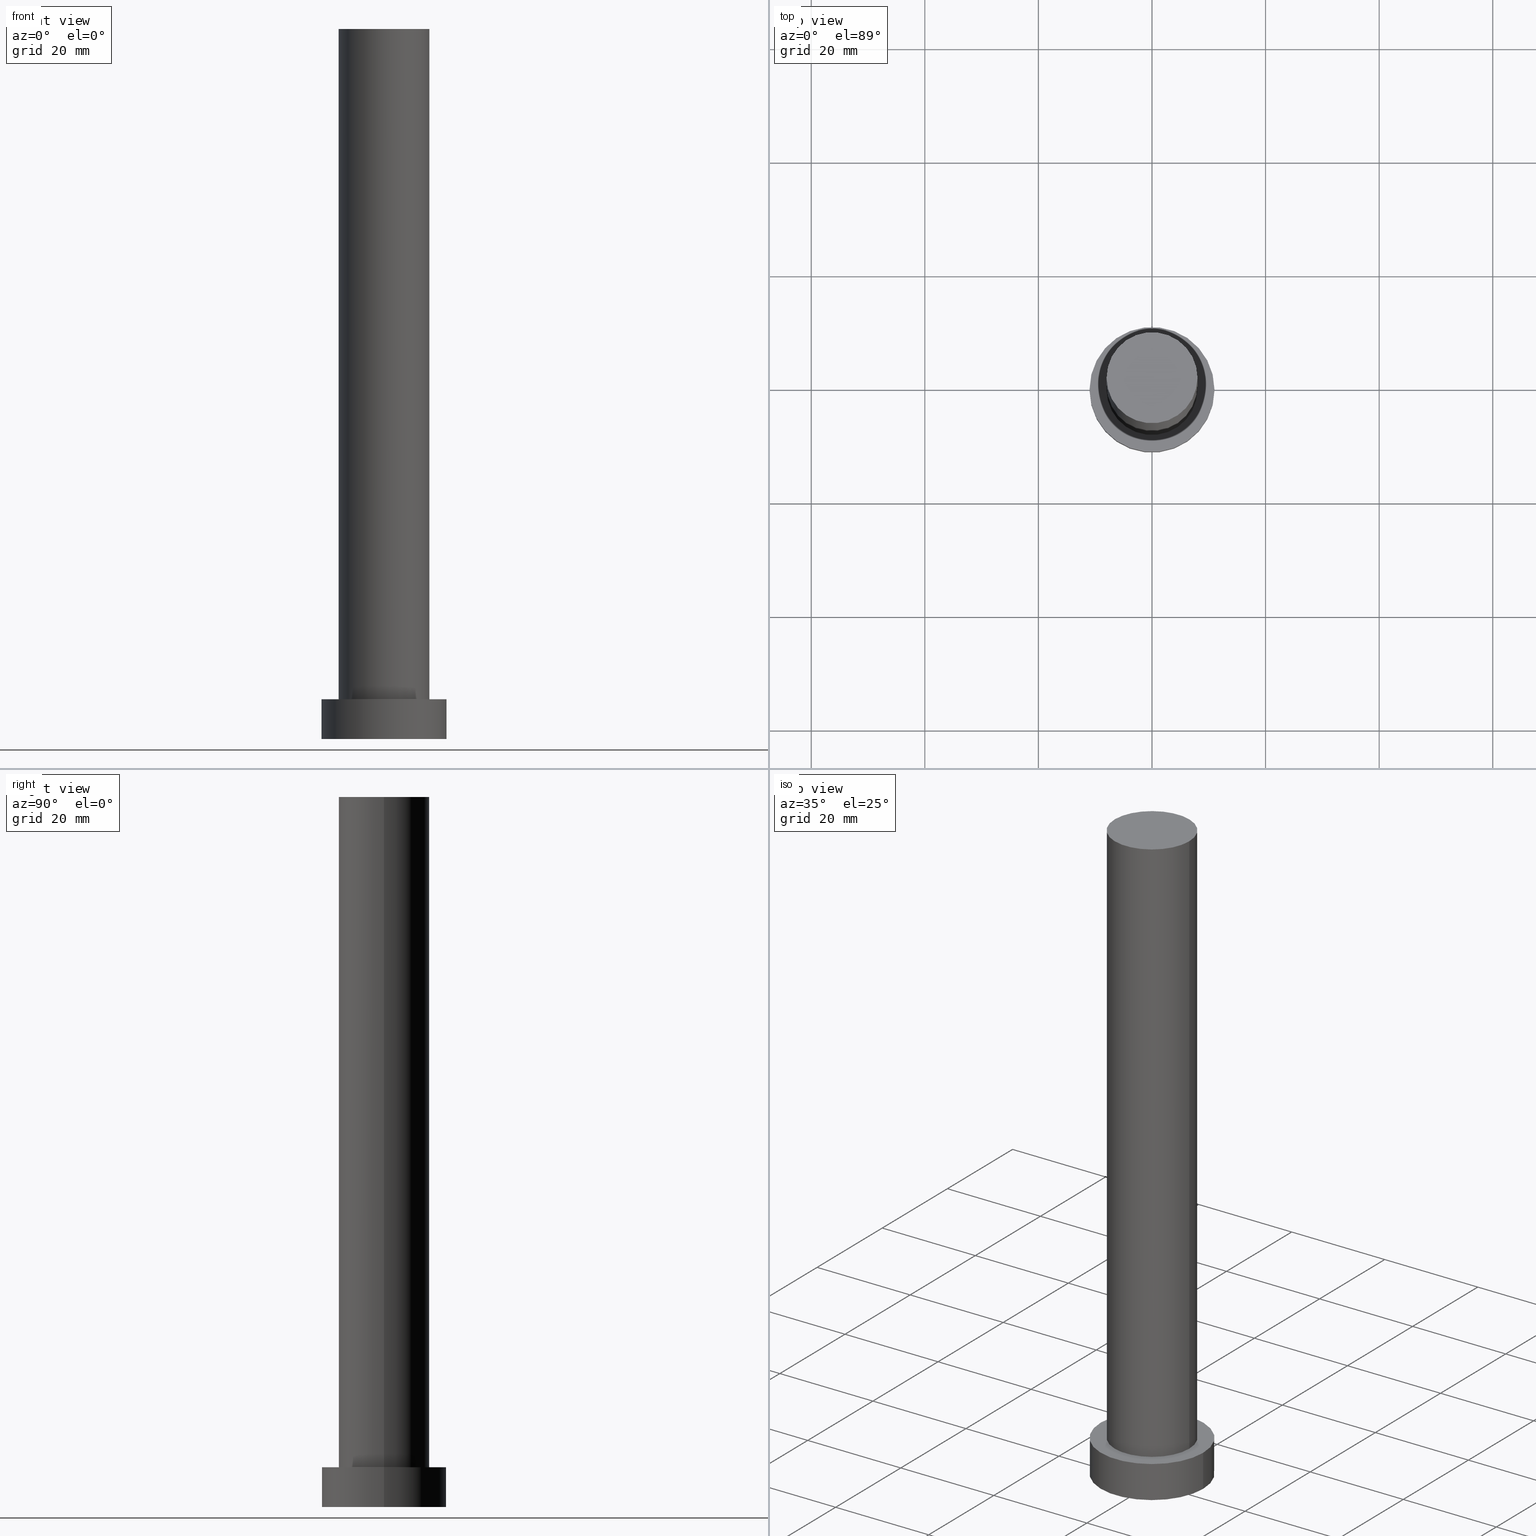
[diagram: canonical four-view strip — front | top / right | iso, engineering-drawing reading convention]
A machine part, canonical four-view strip (front | top / right | iso — engineering-drawing reading convention). The complete STEP part file that produces these views, byte-faithful:
ISO-10303-21;
HEADER;
FILE_DESCRIPTION (( 'STEP AP203' ),
    '1' );
FILE_NAME ('a4a7.STEP',
    '2023-02-13T09:15:44',
    ( '' ),
    ( '' ),
    'SwSTEP 2.0',
    'SolidWorks 2019',
    '' );
FILE_SCHEMA (( 'CONFIG_CONTROL_DESIGN' ));
ENDSEC;

DATA;
#1 = COORDINATED_UNIVERSAL_TIME_OFFSET ( 1, 0, .AHEAD. ) ;
#2 = ADVANCED_FACE ( 'NONE', ( #35 ), #195, .T. ) ;
#3 = CARTESIAN_POINT ( 'NONE',  ( 0.000000000000000000, 0.000000000000000000, 0.000000000000000000 ) ) ;
#4 = CARTESIAN_POINT ( 'NONE',  ( 8.000000000000000000, 9.797174393178825657E-16, 125.0000000000000000 ) ) ;
#5 = CC_DESIGN_APPROVAL ( #60, ( #173 ) ) ;
#6 = CARTESIAN_POINT ( 'NONE',  ( -8.000000000000000000, 0.000000000000000000, 125.0000000000000000 ) ) ;
#7 = ORIENTED_EDGE ( 'NONE', *, *, #156, .F. ) ;
#8 = CALENDAR_DATE ( 2023, 13, 2 ) ;
#9 = ORIENTED_EDGE ( 'NONE', *, *, #112, .F. ) ;
#10 = DIRECTION ( 'NONE',  ( -1.000000000000000000, 0.000000000000000000, 0.000000000000000000 ) ) ;
#11 = DIRECTION ( 'NONE',  ( -1.000000000000000000, 0.000000000000000000, 0.000000000000000000 ) ) ;
#12 = APPROVAL ( #123, 'NEUR�EN�' ) ;
#13 = CARTESIAN_POINT ( 'NONE',  ( 0.000000000000000000, 0.000000000000000000, 7.000000000000000000 ) ) ;
#14 = AXIS2_PLACEMENT_3D ( 'NONE', #3, #21, #129 ) ;
#15 = ORIENTED_EDGE ( 'NONE', *, *, #97, .F. ) ;
#16 = APPROVAL_DATE_TIME ( #92, #60 ) ;
#17 = CYLINDRICAL_SURFACE ( 'NONE', #46, 8.000000000000000000 ) ;
#18 = PERSON_AND_ORGANIZATION_ROLE ( 'creator' ) ;
#19 = ADVANCED_FACE ( 'NONE', ( #52 ), #17, .T. ) ;
#20 = DIRECTION ( 'NONE',  ( 1.000000000000000000, 0.000000000000000000, -0.000000000000000000 ) ) ;
#21 = DIRECTION ( 'NONE',  ( 0.000000000000000000, 0.000000000000000000, 1.000000000000000000 ) ) ;
#22 = EDGE_CURVE ( 'NONE', #158, #239, #190, .T. ) ;
#23 = DIRECTION ( 'NONE',  ( 1.000000000000000000, 0.000000000000000000, 0.000000000000000000 ) ) ;
#24 = VECTOR ( 'NONE', #39, 1000.000000000000000 ) ;
#25 = APPROVAL_PERSON_ORGANIZATION ( #120, #67, #203 ) ;
#26 = PERSON_AND_ORGANIZATION ( #69, #41 ) ;
#27 = AXIS2_PLACEMENT_3D ( 'NONE', #197, #198, #11 ) ;
#28 = DATE_AND_TIME ( #79, #248 ) ;
#29 = CLOSED_SHELL ( 'NONE', ( #54, #2, #183, #253, #45, #19, #200 ) ) ;
#30 = AXIS2_PLACEMENT_3D ( 'NONE', #134, #84, #20 ) ;
#31 = FACE_OUTER_BOUND ( 'NONE', #48, .T. ) ;
#32 = DATE_AND_TIME ( #38, #240 ) ;
#33 = DIRECTION ( 'NONE',  ( 1.000000000000000000, 0.000000000000000000, -0.000000000000000000 ) ) ;
#34 = COORDINATED_UNIVERSAL_TIME_OFFSET ( 1, 0, .AHEAD. ) ;
#35 = FACE_OUTER_BOUND ( 'NONE', #71, .T. ) ;
#36 = CARTESIAN_POINT ( 'NONE',  ( 0.000000000000000000, 0.000000000000000000, 7.000000000000000000 ) ) ;
#37 =( GEOMETRIC_REPRESENTATION_CONTEXT ( 3 ) GLOBAL_UNCERTAINTY_ASSIGNED_CONTEXT ( ( #194 ) ) GLOBAL_UNIT_ASSIGNED_CONTEXT ( ( #207, #242, #110 ) ) REPRESENTATION_CONTEXT ( 'NONE', 'WORKASPACE' ) );
#38 = CALENDAR_DATE ( 2023, 13, 2 ) ;
#39 = DIRECTION ( 'NONE',  ( -0.000000000000000000, -0.000000000000000000, -1.000000000000000000 ) ) ;
#40 = CARTESIAN_POINT ( 'NONE',  ( -11.00000000000000000, 0.000000000000000000, 7.000000000000000000 ) ) ;
#41 = ORGANIZATION ( 'NEUR�EN�', 'NEUR�EN�', '' ) ;
#42 = CARTESIAN_POINT ( 'NONE',  ( 8.000000000000000000, 9.797174393178825657E-16, 7.000000000000000000 ) ) ;
#43 = CARTESIAN_POINT ( 'NONE',  ( 0.000000000000000000, 0.000000000000000000, 0.000000000000000000 ) ) ;
#44 = APPROVAL_STATUS ( 'not_yet_approved' ) ;
#45 = ADVANCED_FACE ( 'NONE', ( #230 ), #249, .F. ) ;
#46 = AXIS2_PLACEMENT_3D ( 'NONE', #252, #139, #148 ) ;
#47 = AXIS2_PLACEMENT_3D ( 'NONE', #133, #235, #113 ) ;
#48 = EDGE_LOOP ( 'NONE', ( #167, #243, #128, #119 ) ) ;
#49 = ORIENTED_EDGE ( 'NONE', *, *, #22, .T. ) ;
#50 = CC_DESIGN_PERSON_AND_ORGANIZATION_ASSIGNMENT ( #105, #143, ( #155 ) ) ;
#51 = CIRCLE ( 'NONE', #66, 8.000000000000000000 ) ;
#52 = FACE_OUTER_BOUND ( 'NONE', #211, .T. ) ;
#53 = VERTEX_POINT ( 'NONE', #124 ) ;
#54 = ADVANCED_FACE ( 'NONE', ( #31 ), #122, .T. ) ;
#55 = LINE ( 'NONE', #144, #154 ) ;
#56 = ORIENTED_EDGE ( 'NONE', *, *, #187, .F. ) ;
#57 = APPROVAL_STATUS ( 'not_yet_approved' ) ;
#58 = CARTESIAN_POINT ( 'NONE',  ( 0.000000000000000000, 0.000000000000000000, 125.0000000000000000 ) ) ;
#59 = DIRECTION ( 'NONE',  ( 0.000000000000000000, 0.000000000000000000, 1.000000000000000000 ) ) ;
#60 = APPROVAL ( #44, 'NEUR�EN�' ) ;
#61 = CARTESIAN_POINT ( 'NONE',  ( 0.000000000000000000, 0.000000000000000000, 125.0000000000000000 ) ) ;
#62 = AXIS2_PLACEMENT_3D ( 'NONE', #13, #180, #199 ) ;
#63 = FACE_BOUND ( 'NONE', #142, .T. ) ;
#64 = PERSON_AND_ORGANIZATION_ROLE ( 'design_owner' ) ;
#65 = VECTOR ( 'NONE', #99, 1000.000000000000000 ) ;
#66 = AXIS2_PLACEMENT_3D ( 'NONE', #151, #83, #205 ) ;
#67 = APPROVAL ( #57, 'NEUR�EN�' ) ;
#68 = ORIENTED_EDGE ( 'NONE', *, *, #206, .F. ) ;
#69 = PERSON ( 'NEUR�EN�', 'NEUR�EN�', 'NEUR�EN�', ('NEUR�EN�'), ('NEUR�EN�'), ('NEUR�EN�') ) ;
#70 = CIRCLE ( 'NONE', #196, 8.000000000000000000 ) ;
#71 = EDGE_LOOP ( 'NONE', ( #232, #95, #104, #91 ) ) ;
#72 = APPLICATION_CONTEXT ( 'configuration controlled 3d designs of mechanical parts and assemblies' ) ;
#73 = ORIENTED_EDGE ( 'NONE', *, *, #77, .F. ) ;
#74 = SECURITY_CLASSIFICATION_LEVEL ( 'unclassified' ) ;
#75 = AXIS2_PLACEMENT_3D ( 'NONE', #125, #220, #98 ) ;
#76 = CARTESIAN_POINT ( 'NONE',  ( 8.000000000000000000, 9.797174393178825657E-16, 125.0000000000000000 ) ) ;
#77 = EDGE_CURVE ( 'NONE', #164, #239, #233, .T. ) ;
#78 = DIRECTION ( 'NONE',  ( -0.000000000000000000, -0.000000000000000000, -1.000000000000000000 ) ) ;
#79 = CALENDAR_DATE ( 2023, 13, 2 ) ;
#80 = ORIENTED_EDGE ( 'NONE', *, *, #156, .T. ) ;
#81 = COORDINATED_UNIVERSAL_TIME_OFFSET ( 1, 0, .AHEAD. ) ;
#82 = LINE ( 'NONE', #6, #24 ) ;
#83 = DIRECTION ( 'NONE',  ( 0.000000000000000000, 0.000000000000000000, 1.000000000000000000 ) ) ;
#84 = DIRECTION ( 'NONE',  ( 0.000000000000000000, 0.000000000000000000, 1.000000000000000000 ) ) ;
#85 = ORIENTED_EDGE ( 'NONE', *, *, #187, .T. ) ;
#86 = FACE_OUTER_BOUND ( 'NONE', #229, .T. ) ;
#87 = AXIS2_PLACEMENT_3D ( 'NONE', #160, #202, #10 ) ;
#88 = CIRCLE ( 'NONE', #94, 11.00000000000000000 ) ;
#89 = CC_DESIGN_PERSON_AND_ORGANIZATION_ASSIGNMENT ( #179, #163, ( #173 ) ) ;
#90 = DIRECTION ( 'NONE',  ( -0.000000000000000000, -0.000000000000000000, -1.000000000000000000 ) ) ;
#91 = ORIENTED_EDGE ( 'NONE', *, *, #107, .F. ) ;
#92 = DATE_AND_TIME ( #8, #127 ) ;
#93 = ORIENTED_EDGE ( 'NONE', *, *, #118, .T. ) ;
#94 = AXIS2_PLACEMENT_3D ( 'NONE', #170, #59, #223 ) ;
#95 = ORIENTED_EDGE ( 'NONE', *, *, #112, .T. ) ;
#96 = SECURITY_CLASSIFICATION ( '', '', #74 ) ;
#97 = EDGE_CURVE ( 'NONE', #239, #158, #126, .T. ) ;
#98 = DIRECTION ( 'NONE',  ( 1.000000000000000000, 0.000000000000000000, 0.000000000000000000 ) ) ;
#99 = DIRECTION ( 'NONE',  ( -0.000000000000000000, -0.000000000000000000, -1.000000000000000000 ) ) ;
#100 = DIRECTION ( 'NONE',  ( 0.000000000000000000, 0.000000000000000000, 1.000000000000000000 ) ) ;
#101 = APPROVAL_DATE_TIME ( #217, #12 ) ;
#102 = LINE ( 'NONE', #182, #247 ) ;
#103 = PERSON_AND_ORGANIZATION_ROLE ( 'classification_officer' ) ;
#104 = ORIENTED_EDGE ( 'NONE', *, *, #224, .T. ) ;
#105 = PERSON_AND_ORGANIZATION ( #69, #41 ) ;
#106 = CARTESIAN_POINT ( 'NONE',  ( 11.00000000000000000, 1.347111479062088405E-15, 0.000000000000000000 ) ) ;
#107 = EDGE_CURVE ( 'NONE', #246, #162, #102, .T. ) ;
#108 = DIRECTION ( 'NONE',  ( 0.000000000000000000, 0.000000000000000000, 1.000000000000000000 ) ) ;
#109 = AXIS2_PLACEMENT_3D ( 'NONE', #169, #90, #153 ) ;
#110 =( NAMED_UNIT ( * ) SI_UNIT ( $, .STERADIAN. ) SOLID_ANGLE_UNIT ( ) );
#111 = APPLICATION_PROTOCOL_DEFINITION ( 'international standard', 'config_control_design', 1994, #188 ) ;
#112 = EDGE_CURVE ( 'NONE', #214, #250, #55, .T. ) ;
#113 = DIRECTION ( 'NONE',  ( 1.000000000000000000, 0.000000000000000000, 0.000000000000000000 ) ) ;
#114 = AXIS2_PLACEMENT_3D ( 'NONE', #138, #100, #33 ) ;
#115 = AXIS2_PLACEMENT_3D ( 'NONE', #43, #208, #23 ) ;
#116 = MECHANICAL_CONTEXT ( 'NONE', #188, 'mechanical' ) ;
#117 = PRODUCT_DEFINITION_SHAPE ( 'NONE', 'NONE',  #173 ) ;
#118 = EDGE_CURVE ( 'NONE', #214, #246, #186, .T. ) ;
#119 = ORIENTED_EDGE ( 'NONE', *, *, #166, .F. ) ;
#120 = PERSON_AND_ORGANIZATION ( #69, #41 ) ;
#121 = CC_DESIGN_SECURITY_CLASSIFICATION ( #96, ( #155 ) ) ;
#122 = CYLINDRICAL_SURFACE ( 'NONE', #27, 8.000000000000000000 ) ;
#123 = APPROVAL_STATUS ( 'not_yet_approved' ) ;
#124 = CARTESIAN_POINT ( 'NONE',  ( -8.000000000000000000, 0.000000000000000000, 125.0000000000000000 ) ) ;
#125 = CARTESIAN_POINT ( 'NONE',  ( 0.000000000000000000, 0.000000000000000000, 7.000000000000000000 ) ) ;
#126 = CIRCLE ( 'NONE', #62, 8.000000000000000000 ) ;
#127 = LOCAL_TIME ( 10, 15, 44.00000000000000000, #209 ) ;
#128 = ORIENTED_EDGE ( 'NONE', *, *, #97, .T. ) ;
#129 = DIRECTION ( 'NONE',  ( 1.000000000000000000, 0.000000000000000000, 0.000000000000000000 ) ) ;
#130 = CC_DESIGN_PERSON_AND_ORGANIZATION_ASSIGNMENT ( #140, #18, ( #155 ) ) ;
#131 = FACE_OUTER_BOUND ( 'NONE', #234, .T. ) ;
#132 = CC_DESIGN_APPROVAL ( #12, ( #155 ) ) ;
#133 = CARTESIAN_POINT ( 'NONE',  ( 0.000000000000000000, 0.000000000000000000, 7.000000000000000000 ) ) ;
#134 = CARTESIAN_POINT ( 'NONE',  ( 0.000000000000000000, 0.000000000000000000, 7.000000000000000000 ) ) ;
#135 = CYLINDRICAL_SURFACE ( 'NONE', #109, 11.00000000000000000 ) ;
#136 = APPROVAL_ROLE ( '' ) ;
#137 = LOCAL_TIME ( 10, 15, 44.00000000000000000, #81 ) ;
#138 = CARTESIAN_POINT ( 'NONE',  ( 0.000000000000000000, 0.000000000000000000, 0.000000000000000000 ) ) ;
#139 = DIRECTION ( 'NONE',  ( -0.000000000000000000, -0.000000000000000000, -1.000000000000000000 ) ) ;
#140 = PERSON_AND_ORGANIZATION ( #69, #41 ) ;
#141 = CC_DESIGN_PERSON_AND_ORGANIZATION_ASSIGNMENT ( #26, #64, ( #244 ) ) ;
#142 = EDGE_LOOP ( 'NONE', ( #216, #15 ) ) ;
#143 = PERSON_AND_ORGANIZATION_ROLE ( 'design_supplier' ) ;
#144 = CARTESIAN_POINT ( 'NONE',  ( 11.00000000000000000, 1.347111479062088405E-15, 7.000000000000000000 ) ) ;
#145 = APPROVAL_ROLE ( '' ) ;
#146 = AXIS2_PLACEMENT_3D ( 'NONE', #36, #152, #221 ) ;
#147 = LOCAL_TIME ( 10, 15, 44.00000000000000000, #34 ) ;
#148 = DIRECTION ( 'NONE',  ( -1.000000000000000000, 0.000000000000000000, 0.000000000000000000 ) ) ;
#149 = CC_DESIGN_DATE_AND_TIME_ASSIGNMENT ( #28, #165, ( #173 ) ) ;
#150 = FACE_OUTER_BOUND ( 'NONE', #175, .T. ) ;
#151 = CARTESIAN_POINT ( 'NONE',  ( 0.000000000000000000, 0.000000000000000000, 125.0000000000000000 ) ) ;
#152 = DIRECTION ( 'NONE',  ( 0.000000000000000000, 0.000000000000000000, 1.000000000000000000 ) ) ;
#153 = DIRECTION ( 'NONE',  ( -1.000000000000000000, 0.000000000000000000, 0.000000000000000000 ) ) ;
#154 = VECTOR ( 'NONE', #218, 1000.000000000000000 ) ;
#155 = PRODUCT_DEFINITION_FORMATION_WITH_SPECIFIED_SOURCE ( 'LIBOVOLN�', '', #244, .NOT_KNOWN. ) ;
#156 = EDGE_CURVE ( 'NONE', #162, #250, #227, .T. ) ;
#157 = ORIENTED_EDGE ( 'NONE', *, *, #166, .T. ) ;
#158 = VERTEX_POINT ( 'NONE', #238 ) ;
#159 = COORDINATED_UNIVERSAL_TIME_OFFSET ( 1, 0, .AHEAD. ) ;
#160 = CARTESIAN_POINT ( 'NONE',  ( 0.000000000000000000, 0.000000000000000000, 7.000000000000000000 ) ) ;
#161 = CALENDAR_DATE ( 2023, 13, 2 ) ;
#162 = VERTEX_POINT ( 'NONE', #189 ) ;
#163 = PERSON_AND_ORGANIZATION_ROLE ( 'creator' ) ;
#164 = VERTEX_POINT ( 'NONE', #4 ) ;
#165 = DATE_TIME_ROLE ( 'creation_date' ) ;
#166 = EDGE_CURVE ( 'NONE', #53, #158, #82, .T. ) ;
#167 = ORIENTED_EDGE ( 'NONE', *, *, #213, .F. ) ;
#168 = PERSON_AND_ORGANIZATION ( #69, #41 ) ;
#169 = CARTESIAN_POINT ( 'NONE',  ( 0.000000000000000000, 0.000000000000000000, 7.000000000000000000 ) ) ;
#170 = CARTESIAN_POINT ( 'NONE',  ( 0.000000000000000000, 0.000000000000000000, 0.000000000000000000 ) ) ;
#171 = CIRCLE ( 'NONE', #47, 11.00000000000000000 ) ;
#172 = PLANE ( 'NONE',  #30 ) ;
#173 = PRODUCT_DEFINITION ( 'NEZN�M�', '', #155, #226 ) ;
#174 = APPROVAL_PERSON_ORGANIZATION ( #225, #60, #136 ) ;
#175 = EDGE_LOOP ( 'NONE', ( #85, #93 ) ) ;
#176 = CC_DESIGN_APPROVAL ( #67, ( #96 ) ) ;
#177 = CC_DESIGN_DATE_AND_TIME_ASSIGNMENT ( #212, #201, ( #96 ) ) ;
#178 = ORIENTED_EDGE ( 'NONE', *, *, #224, .F. ) ;
#179 = PERSON_AND_ORGANIZATION ( #69, #41 ) ;
#180 = DIRECTION ( 'NONE',  ( 0.000000000000000000, 0.000000000000000000, 1.000000000000000000 ) ) ;
#181 = SHAPE_DEFINITION_REPRESENTATION ( #117, #236 ) ;
#182 = CARTESIAN_POINT ( 'NONE',  ( -11.00000000000000000, 0.000000000000000000, 7.000000000000000000 ) ) ;
#183 = ADVANCED_FACE ( 'NONE', ( #131 ), #135, .T. ) ;
#184 = ORIENTED_EDGE ( 'NONE', *, *, #206, .T. ) ;
#185 = APPROVAL_DATE_TIME ( #32, #67 ) ;
#186 = CIRCLE ( 'NONE', #146, 11.00000000000000000 ) ;
#187 = EDGE_CURVE ( 'NONE', #246, #214, #171, .T. ) ;
#188 = APPLICATION_CONTEXT ( 'configuration controlled 3d designs of mechanical parts and assemblies' ) ;
#189 = CARTESIAN_POINT ( 'NONE',  ( -11.00000000000000000, 0.000000000000000000, 0.000000000000000000 ) ) ;
#190 = CIRCLE ( 'NONE', #75, 8.000000000000000000 ) ;
#191 = DIRECTION ( 'NONE',  ( 1.000000000000000000, 0.000000000000000000, -0.000000000000000000 ) ) ;
#192 = ORIENTED_EDGE ( 'NONE', *, *, #213, .T. ) ;
#193 = APPLICATION_PROTOCOL_DEFINITION ( 'international standard', 'config_control_design', 1994, #72 ) ;
#194 = UNCERTAINTY_MEASURE_WITH_UNIT (LENGTH_MEASURE( 1.000000000000000082E-05 ), #207, 'distance_accuracy_value', 'NONE');
#195 = CYLINDRICAL_SURFACE ( 'NONE', #87, 11.00000000000000000 ) ;
#196 = AXIS2_PLACEMENT_3D ( 'NONE', #58, #108, #204 ) ;
#197 = CARTESIAN_POINT ( 'NONE',  ( 0.000000000000000000, 0.000000000000000000, 125.0000000000000000 ) ) ;
#198 = DIRECTION ( 'NONE',  ( -0.000000000000000000, -0.000000000000000000, -1.000000000000000000 ) ) ;
#199 = DIRECTION ( 'NONE',  ( 1.000000000000000000, 0.000000000000000000, 0.000000000000000000 ) ) ;
#200 = ADVANCED_FACE ( 'NONE', ( #86 ), #222, .T. ) ;
#201 = DATE_TIME_ROLE ( 'classification_date' ) ;
#202 = DIRECTION ( 'NONE',  ( -0.000000000000000000, -0.000000000000000000, -1.000000000000000000 ) ) ;
#203 = APPROVAL_ROLE ( '' ) ;
#204 = DIRECTION ( 'NONE',  ( 1.000000000000000000, 0.000000000000000000, 0.000000000000000000 ) ) ;
#205 = DIRECTION ( 'NONE',  ( 1.000000000000000000, 0.000000000000000000, 0.000000000000000000 ) ) ;
#206 = EDGE_CURVE ( 'NONE', #53, #164, #51, .T. ) ;
#207 =( LENGTH_UNIT ( ) NAMED_UNIT ( * ) SI_UNIT ( .MILLI., .METRE. ) );
#208 = DIRECTION ( 'NONE',  ( 0.000000000000000000, 0.000000000000000000, 1.000000000000000000 ) ) ;
#209 = COORDINATED_UNIVERSAL_TIME_OFFSET ( 1, 0, .AHEAD. ) ;
#210 = MANIFOLD_SOLID_BREP ( 'P�idat vysunut�m3', #29 ) ;
#211 = EDGE_LOOP ( 'NONE', ( #73, #68, #157, #49 ) ) ;
#212 = DATE_AND_TIME ( #161, #147 ) ;
#213 = EDGE_CURVE ( 'NONE', #164, #53, #70, .T. ) ;
#214 = VERTEX_POINT ( 'NONE', #241 ) ;
#215 = AXIS2_PLACEMENT_3D ( 'NONE', #61, #237, #191 ) ;
#216 = ORIENTED_EDGE ( 'NONE', *, *, #22, .F. ) ;
#217 = DATE_AND_TIME ( #219, #137 ) ;
#218 = DIRECTION ( 'NONE',  ( -0.000000000000000000, -0.000000000000000000, -1.000000000000000000 ) ) ;
#219 = CALENDAR_DATE ( 2023, 13, 2 ) ;
#220 = DIRECTION ( 'NONE',  ( 0.000000000000000000, 0.000000000000000000, 1.000000000000000000 ) ) ;
#221 = DIRECTION ( 'NONE',  ( 1.000000000000000000, 0.000000000000000000, 0.000000000000000000 ) ) ;
#222 = PLANE ( 'NONE',  #215 ) ;
#223 = DIRECTION ( 'NONE',  ( 1.000000000000000000, 0.000000000000000000, 0.000000000000000000 ) ) ;
#224 = EDGE_CURVE ( 'NONE', #250, #162, #88, .T. ) ;
#225 = PERSON_AND_ORGANIZATION ( #69, #41 ) ;
#226 = DESIGN_CONTEXT ( 'detailed design', #72, 'design' ) ;
#227 = CIRCLE ( 'NONE', #14, 11.00000000000000000 ) ;
#228 = CC_DESIGN_PERSON_AND_ORGANIZATION_ASSIGNMENT ( #168, #103, ( #96 ) ) ;
#229 = EDGE_LOOP ( 'NONE', ( #184, #192 ) ) ;
#230 = FACE_OUTER_BOUND ( 'NONE', #255, .T. ) ;
#231 = PRODUCT_RELATED_PRODUCT_CATEGORY ( 'detail', '', ( #244 ) ) ;
#232 = ORIENTED_EDGE ( 'NONE', *, *, #118, .F. ) ;
#233 = LINE ( 'NONE', #76, #65 ) ;
#234 = EDGE_LOOP ( 'NONE', ( #9, #56, #254, #80 ) ) ;
#235 = DIRECTION ( 'NONE',  ( 0.000000000000000000, 0.000000000000000000, 1.000000000000000000 ) ) ;
#236 = ADVANCED_BREP_SHAPE_REPRESENTATION ( 'a4a7', ( #210, #115 ), #37 ) ;
#237 = DIRECTION ( 'NONE',  ( 0.000000000000000000, 0.000000000000000000, 1.000000000000000000 ) ) ;
#238 = CARTESIAN_POINT ( 'NONE',  ( -8.000000000000000000, 0.000000000000000000, 7.000000000000000000 ) ) ;
#239 = VERTEX_POINT ( 'NONE', #42 ) ;
#240 = LOCAL_TIME ( 10, 15, 44.00000000000000000, #1 ) ;
#241 = CARTESIAN_POINT ( 'NONE',  ( 11.00000000000000000, 1.347111479062088405E-15, 7.000000000000000000 ) ) ;
#242 =( NAMED_UNIT ( * ) PLANE_ANGLE_UNIT ( ) SI_UNIT ( $, .RADIAN. ) );
#243 = ORIENTED_EDGE ( 'NONE', *, *, #77, .T. ) ;
#244 = PRODUCT ( 'a4a7', 'a4a7', '', ( #116 ) ) ;
#245 = APPROVAL_PERSON_ORGANIZATION ( #251, #12, #145 ) ;
#246 = VERTEX_POINT ( 'NONE', #40 ) ;
#247 = VECTOR ( 'NONE', #78, 1000.000000000000000 ) ;
#248 = LOCAL_TIME ( 10, 15, 44.00000000000000000, #159 ) ;
#249 = PLANE ( 'NONE',  #114 ) ;
#250 = VERTEX_POINT ( 'NONE', #106 ) ;
#251 = PERSON_AND_ORGANIZATION ( #69, #41 ) ;
#252 = CARTESIAN_POINT ( 'NONE',  ( 0.000000000000000000, 0.000000000000000000, 125.0000000000000000 ) ) ;
#253 = ADVANCED_FACE ( 'NONE', ( #63, #150 ), #172, .T. ) ;
#254 = ORIENTED_EDGE ( 'NONE', *, *, #107, .T. ) ;
#255 = EDGE_LOOP ( 'NONE', ( #7, #178 ) ) ;
ENDSEC;
END-ISO-10303-21;
